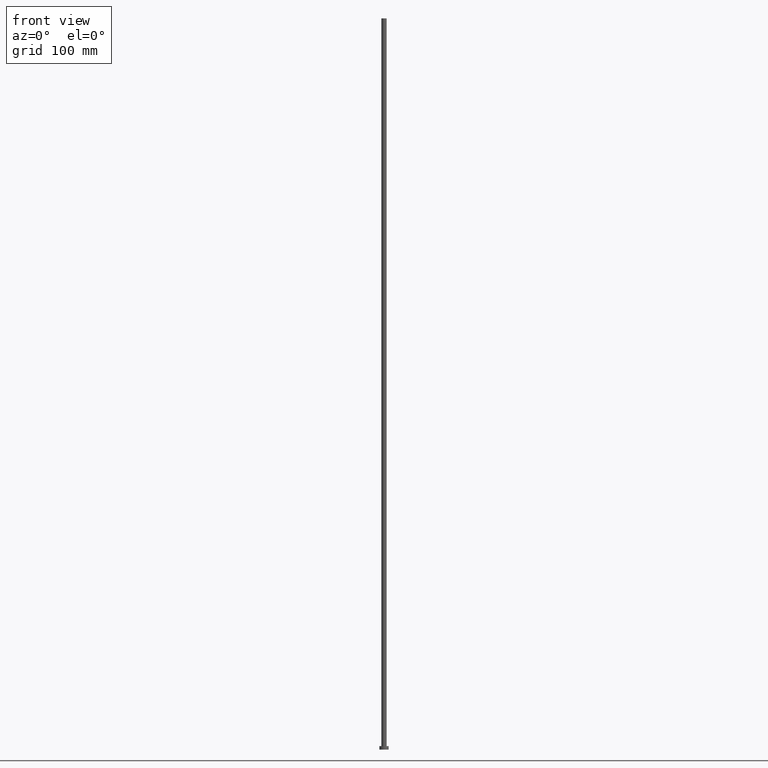
[diagram: clean part render]
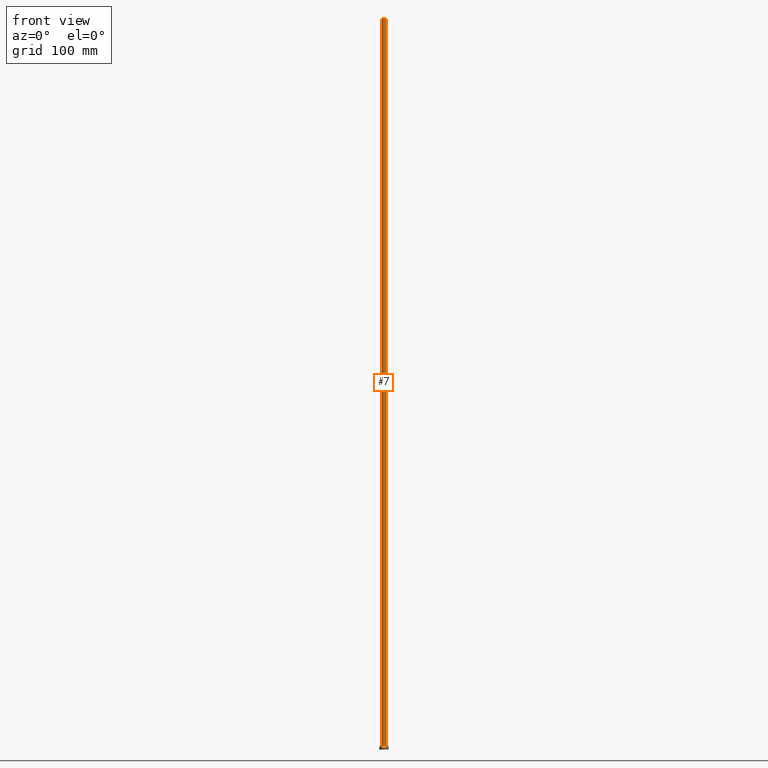
[diagram: same view with one face highlighted and labeled with its STEP entity id]
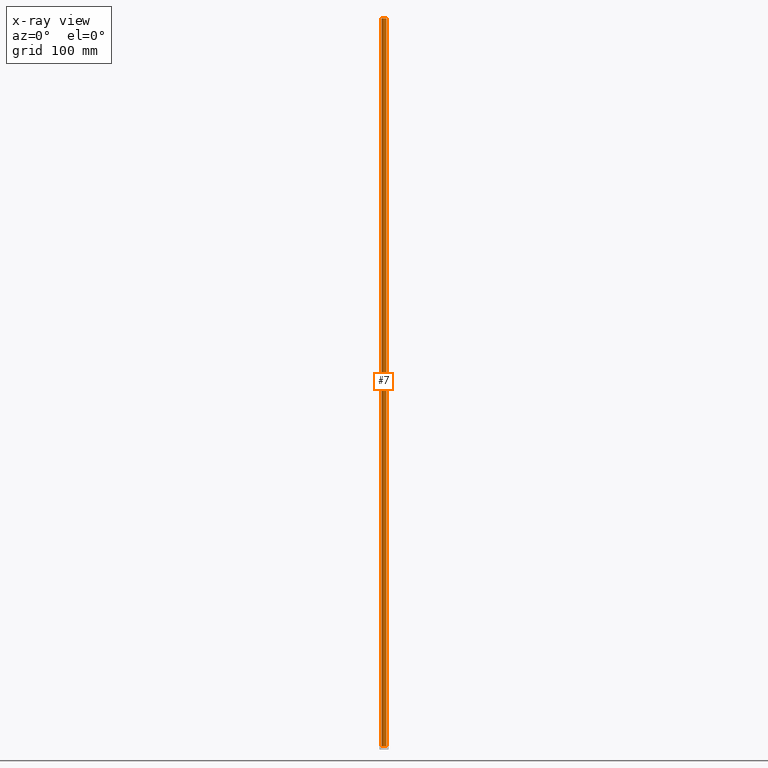
[diagram: x-ray of the same camera — body ghosted, the highlighted face saturated]
A machine part, front view. The second image highlights one B-rep face of the part: STEP entity #7.
The next image is the same camera in x-ray: the body ghosted, the highlighted face saturated — about 0% of this face is hidden behind the body in this view.
In plain terms, the highlighted cylindrical surface (edge-blend (fillet) strip) has radius 2.25 mm, axis along (-0, -0, -1).
Its self-contained STEP definition (entity closure, byte-faithful):
#2 = DIRECTION ( 'NONE',  ( -0.000000000000000000, -0.000000000000000000, -1.000000000000000000 ) ) ;
#4 = CARTESIAN_POINT ( 'NONE',  ( -2.250000000000000000, 0.000000000000000000, 630.0000000000000000 ) ) ;
#7 = ADVANCED_FACE ( 'NONE', ( #42 ), #25, .T. ) ;
#14 = VERTEX_POINT ( 'NONE', #50 ) ;
#19 = ORIENTED_EDGE ( 'NONE', *, *, #78, .F. ) ;
#20 = CIRCLE ( 'NONE', #83, 2.250000000000000000 ) ;
#22 = EDGE_CURVE ( 'NONE', #99, #128, #20, .T. ) ;
#23 = AXIS2_PLACEMENT_3D ( 'NONE', #150, #2, #229 ) ;
#25 = CYLINDRICAL_SURFACE ( 'NONE', #23, 2.250000000000000000 ) ;
#28 = CARTESIAN_POINT ( 'NONE',  ( 2.250000000000000000, 2.755455298081544285E-16, 630.0000000000000000 ) ) ;
#42 = FACE_OUTER_BOUND ( 'NONE', #115, .T. ) ;
#43 = AXIS2_PLACEMENT_3D ( 'NONE', #239, #181, #198 ) ;
#44 = LINE ( 'NONE', #28, #155 ) ;
#50 = CARTESIAN_POINT ( 'NONE',  ( 2.250000000000000000, 2.755455298081544285E-16, 630.0000000000000000 ) ) ;
#56 = CIRCLE ( 'NONE', #43, 2.250000000000000000 ) ;
#77 = ORIENTED_EDGE ( 'NONE', *, *, #183, .F. ) ;
#78 = EDGE_CURVE ( 'NONE', #14, #128, #44, .T. ) ;
#83 = AXIS2_PLACEMENT_3D ( 'NONE', #131, #189, #174 ) ;
#96 = ORIENTED_EDGE ( 'NONE', *, *, #241, .T. ) ;
#99 = VERTEX_POINT ( 'NONE', #221 ) ;
#102 = CARTESIAN_POINT ( 'NONE',  ( 2.250000000000000000, 2.755455298081544285E-16, 3.000000000000000000 ) ) ;
#115 = EDGE_LOOP ( 'NONE', ( #19, #77, #96, #152 ) ) ;
#120 = CARTESIAN_POINT ( 'NONE',  ( -2.250000000000000000, 0.000000000000000000, 630.0000000000000000 ) ) ;
#128 = VERTEX_POINT ( 'NONE', #102 ) ;
#131 = CARTESIAN_POINT ( 'NONE',  ( 0.000000000000000000, 0.000000000000000000, 3.000000000000000000 ) ) ;
#144 = DIRECTION ( 'NONE',  ( -0.000000000000000000, -0.000000000000000000, -1.000000000000000000 ) ) ;
#150 = CARTESIAN_POINT ( 'NONE',  ( 0.000000000000000000, 0.000000000000000000, 630.0000000000000000 ) ) ;
#152 = ORIENTED_EDGE ( 'NONE', *, *, #22, .T. ) ;
#155 = VECTOR ( 'NONE', #144, 1000.000000000000000 ) ;
#159 = DIRECTION ( 'NONE',  ( -0.000000000000000000, -0.000000000000000000, -1.000000000000000000 ) ) ;
#170 = VERTEX_POINT ( 'NONE', #4 ) ;
#174 = DIRECTION ( 'NONE',  ( 1.000000000000000000, 0.000000000000000000, 0.000000000000000000 ) ) ;
#181 = DIRECTION ( 'NONE',  ( 0.000000000000000000, 0.000000000000000000, 1.000000000000000000 ) ) ;
#183 = EDGE_CURVE ( 'NONE', #170, #14, #56, .T. ) ;
#189 = DIRECTION ( 'NONE',  ( 0.000000000000000000, 0.000000000000000000, 1.000000000000000000 ) ) ;
#198 = DIRECTION ( 'NONE',  ( 1.000000000000000000, 0.000000000000000000, 0.000000000000000000 ) ) ;
#201 = LINE ( 'NONE', #120, #220 ) ;
#220 = VECTOR ( 'NONE', #159, 1000.000000000000000 ) ;
#221 = CARTESIAN_POINT ( 'NONE',  ( -2.250000000000000000, 0.000000000000000000, 3.000000000000000000 ) ) ;
#229 = DIRECTION ( 'NONE',  ( -1.000000000000000000, 0.000000000000000000, 0.000000000000000000 ) ) ;
#239 = CARTESIAN_POINT ( 'NONE',  ( 0.000000000000000000, 0.000000000000000000, 630.0000000000000000 ) ) ;
#241 = EDGE_CURVE ( 'NONE', #170, #99, #201, .T. ) ;